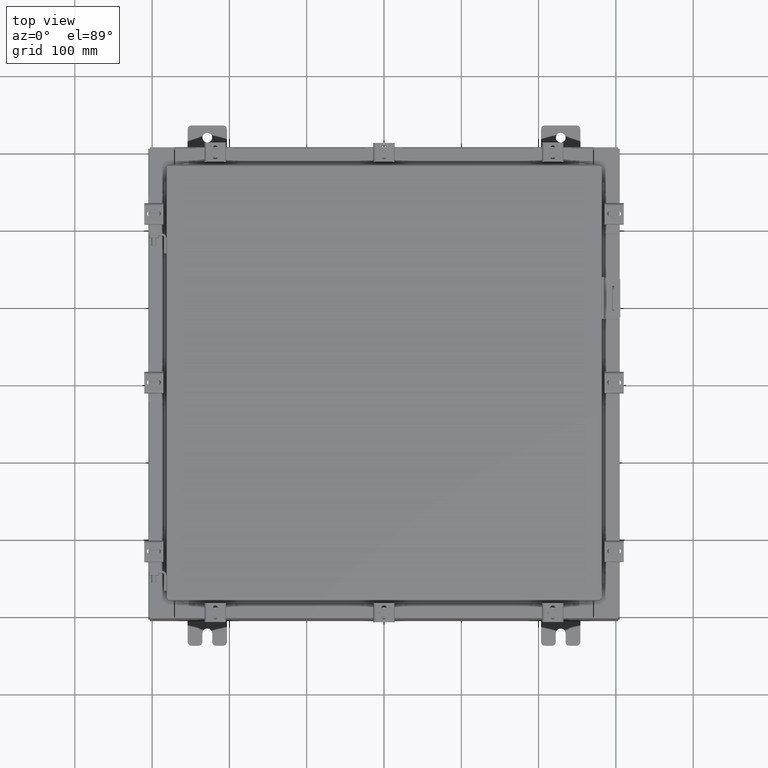
[diagram: clean part render]
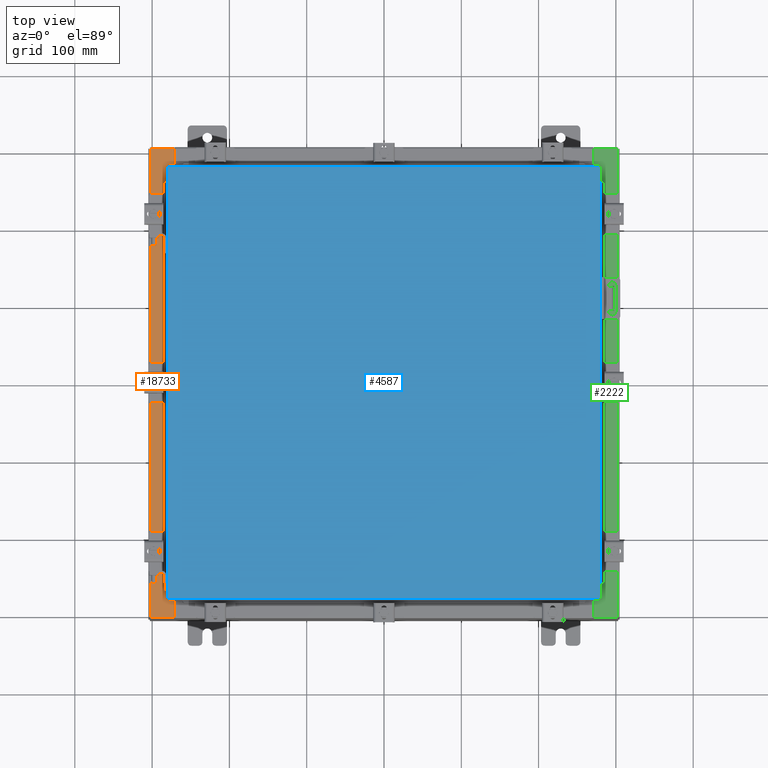
[diagram: same view with three faces highlighted in distinct colors, each labeled with its STEP entity id]
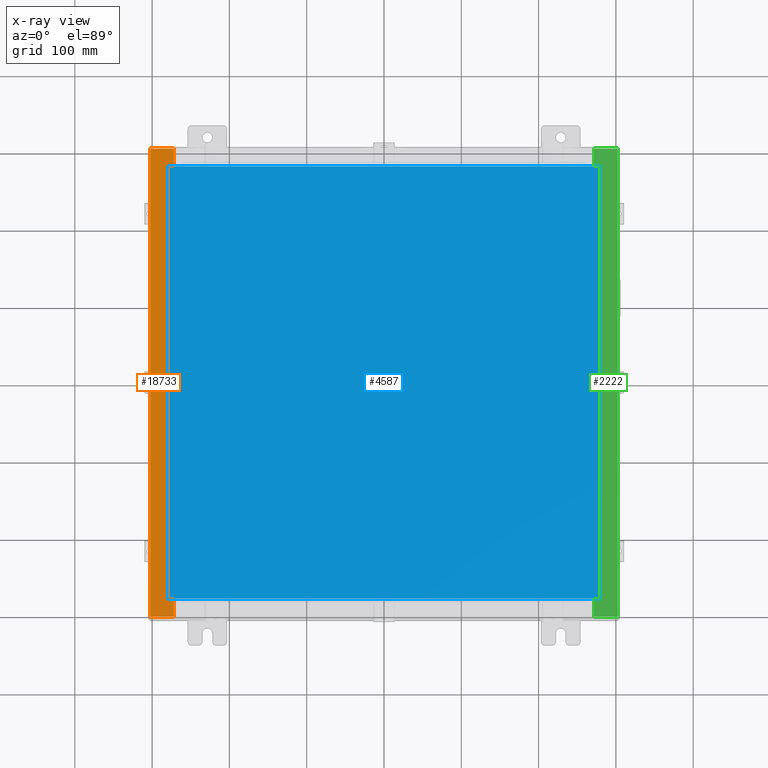
[diagram: x-ray of the same camera — body ghosted, the three highlighted faces saturated]
A machine part, top view with three faces highlighted in distinct colors.
The next image is the same camera in x-ray (body ghosted, the three faces saturated) — at least one of them is partly hidden behind the body in this view.
Their STEP definitions:

[orange] entity #18733 — the highlighted planar face has unit normal (0, 0, -1).
#194 = VERTEX_POINT ( 'NONE', #20283 ) ;
#269 = EDGE_CURVE ( 'NONE', #4550, #5561, #22265, .T. ) ;
#317 = CARTESIAN_POINT ( 'NONE',  ( -5.679009539018295300E-014, 0.0000000000000000000, 7.925300000000085300 ) ) ;
#813 = CARTESIAN_POINT ( 'NONE',  ( -10.75005000000003400, -10.63109999999998800, 7.925300000000008900 ) ) ;
#1818 = CARTESIAN_POINT ( 'NONE',  ( -10.69970000000003200, 10.63109999999999600, 7.925300000000008900 ) ) ;
#1853 = VERTEX_POINT ( 'NONE', #13227 ) ;
#2036 = CARTESIAN_POINT ( 'NONE',  ( -5.679009539018295300E-014, 11.92529999999999800, 7.925300000000085300 ) ) ;
#2079 = VERTEX_POINT ( 'NONE', #19293 ) ;
#2100 = EDGE_CURVE ( 'NONE', #2646, #16009, #10720, .T. ) ;
#2646 = VERTEX_POINT ( 'NONE', #813 ) ;
#2693 = LINE ( 'NONE', #3401, #20720 ) ;
#2778 = LINE ( 'NONE', #18590, #12050 ) ;
#3203 = CARTESIAN_POINT ( 'NONE',  ( -10.75005000000003400, -10.61242499999998900, 7.925300000000006200 ) ) ;
#3401 = CARTESIAN_POINT ( 'NONE',  ( -10.69970000000003200, 0.0000000000000000000, 7.925300000000008900 ) ) ;
#3511 = DIRECTION ( 'NONE',  ( -7.132762385546384700E-015, -0.0000000000000000000, 1.000000000000000000 ) ) ;
#3869 = ORIENTED_EDGE ( 'NONE', *, *, #2100, .F. ) ;
#4073 = AXIS2_PLACEMENT_3D ( 'NONE', #13993, #3511, #15778 ) ;
#4187 = ORIENTED_EDGE ( 'NONE', *, *, #269, .F. ) ;
#4423 = EDGE_CURVE ( 'NONE', #22096, #16009, #22073, .T. ) ;
#4443 = VECTOR ( 'NONE', #12146, 39.37007874015748100 ) ;
#4546 = CARTESIAN_POINT ( 'NONE',  ( -5.679009539018295300E-014, -11.92530000000000000, 7.925300000000085300 ) ) ;
#4550 = VERTEX_POINT ( 'NONE', #1818 ) ;
#4577 = DIRECTION ( 'NONE',  ( -0.0000000000000000000, -1.000000000000000000, -0.0000000000000000000 ) ) ;
#4628 = EDGE_CURVE ( 'NONE', #21488, #7824, #22334, .T. ) ;
#4706 = ORIENTED_EDGE ( 'NONE', *, *, #4628, .T. ) ;
#4837 = VECTOR ( 'NONE', #12505, 39.37007874015748100 ) ;
#4929 = DIRECTION ( 'NONE',  ( 1.000000000000000000, 0.0000000000000000000, 0.0000000000000000000 ) ) ;
#5286 = EDGE_CURVE ( 'NONE', #2079, #194, #9178, .T. ) ;
#5561 = VERTEX_POINT ( 'NONE', #6106 ) ;
#5908 = FACE_OUTER_BOUND ( 'NONE', #8754, .T. ) ;
#6106 = CARTESIAN_POINT ( 'NONE',  ( -10.75005000000003400, 10.63109999999999600, 7.925300000000008900 ) ) ;
#6865 = CARTESIAN_POINT ( 'NONE',  ( -11.91230000000003200, 11.92529999999999800, 7.925300000000000000 ) ) ;
#6939 = VECTOR ( 'NONE', #15180, 39.37007874015748100 ) ;
#7139 = ORIENTED_EDGE ( 'NONE', *, *, #9577, .F. ) ;
#7328 = DIRECTION ( 'NONE',  ( 7.132762385546384700E-015, 0.0000000000000000000, -1.000000000000000000 ) ) ;
#7824 = VERTEX_POINT ( 'NONE', #20764 ) ;
#8073 = DIRECTION ( 'NONE',  ( 1.000000000000000000, -0.0000000000000000000, 7.132762385546384700E-015 ) ) ;
#8159 = VECTOR ( 'NONE', #8471, 39.37007874015748100 ) ;
#8471 = DIRECTION ( 'NONE',  ( 0.0000000000000000000, 1.000000000000000000, 0.0000000000000000000 ) ) ;
#8754 = EDGE_LOOP ( 'NONE', ( #4187, #13725, #4706, #18750, #18435, #9954, #3869, #20399, #9370, #21208, #12756, #7139 ) ) ;
#8787 = AXIS2_PLACEMENT_3D ( 'NONE', #3203, #15461, #4929 ) ;
#9178 = LINE ( 'NONE', #21246, #19068 ) ;
#9305 = VERTEX_POINT ( 'NONE', #20326 ) ;
#9370 = ORIENTED_EDGE ( 'NONE', *, *, #20537, .F. ) ;
#9577 = EDGE_CURVE ( 'NONE', #5561, #2079, #11024, .T. ) ;
#9954 = ORIENTED_EDGE ( 'NONE', *, *, #4423, .T. ) ;
#10164 = VECTOR ( 'NONE', #18399, 39.37007874015748100 ) ;
#10720 = LINE ( 'NONE', #19173, #10164 ) ;
#11024 = CIRCLE ( 'NONE', #4073, 0.01867499999999949400 ) ;
#11650 = EDGE_CURVE ( 'NONE', #194, #1853, #2778, .T. ) ;
#11887 = EDGE_CURVE ( 'NONE', #9305, #2646, #17015, .T. ) ;
#12050 = VECTOR ( 'NONE', #4577, 39.37007874015748100 ) ;
#12146 = DIRECTION ( 'NONE',  ( -0.0000000000000000000, 1.000000000000000000, -0.0000000000000000000 ) ) ;
#12505 = DIRECTION ( 'NONE',  ( -1.000000000000000000, 0.0000000000000000000, -7.132762385546384700E-015 ) ) ;
#12539 = PLANE ( 'NONE',  #22445 ) ;
#12756 = ORIENTED_EDGE ( 'NONE', *, *, #5286, .F. ) ;
#13227 = CARTESIAN_POINT ( 'NONE',  ( -10.71270000000003500, -10.59374999999998900, 7.925300000000006200 ) ) ;
#13725 = ORIENTED_EDGE ( 'NONE', *, *, #17915, .T. ) ;
#13774 = LINE ( 'NONE', #6865, #4443 ) ;
#13899 = DIRECTION ( 'NONE',  ( 0.0000000000000000000, 1.000000000000000000, 0.0000000000000000000 ) ) ;
#13993 = CARTESIAN_POINT ( 'NONE',  ( -10.75005000000003400, 10.61242499999999800, 7.925300000000006200 ) ) ;
#14944 = VECTOR ( 'NONE', #8073, 39.37007874015748100 ) ;
#15180 = DIRECTION ( 'NONE',  ( -1.000000000000000000, 0.0000000000000000000, 0.0000000000000000000 ) ) ;
#15461 = DIRECTION ( 'NONE',  ( -7.132762385546384700E-015, -0.0000000000000000000, 1.000000000000000000 ) ) ;
#15778 = DIRECTION ( 'NONE',  ( 1.000000000000000000, 0.0000000000000000000, 0.0000000000000000000 ) ) ;
#16009 = VERTEX_POINT ( 'NONE', #17808 ) ;
#16850 = LINE ( 'NONE', #18600, #6939 ) ;
#17015 = CIRCLE ( 'NONE', #8787, 0.01867499999999949400 ) ;
#17808 = CARTESIAN_POINT ( 'NONE',  ( -10.69970000000003200, -10.63109999999999100, 7.925300000000008900 ) ) ;
#17915 = EDGE_CURVE ( 'NONE', #4550, #21488, #2693, .T. ) ;
#18399 = DIRECTION ( 'NONE',  ( 1.000000000000000000, 0.0000000000000000000, 2.170286390199955400E-014 ) ) ;
#18435 = ORIENTED_EDGE ( 'NONE', *, *, #19679, .T. ) ;
#18590 = CARTESIAN_POINT ( 'NONE',  ( -10.71270000000003500, 10.59374999999999300, 7.925300000000006200 ) ) ;
#18600 = CARTESIAN_POINT ( 'NONE',  ( -10.71270000000003500, -10.59374999999998900, 7.925300000000006200 ) ) ;
#18733 = ADVANCED_FACE ( 'NONE', ( #5908 ), #12539, .F. ) ;
#18750 = ORIENTED_EDGE ( 'NONE', *, *, #21747, .F. ) ;
#19068 = VECTOR ( 'NONE', #19501, 39.37007874015748100 ) ;
#19173 = CARTESIAN_POINT ( 'NONE',  ( -10.75005000000003400, -10.63109999999998800, 7.925300000000006200 ) ) ;
#19293 = CARTESIAN_POINT ( 'NONE',  ( -10.75005000000003400, 10.59374999999999800, 7.925300000000008900 ) ) ;
#19501 = DIRECTION ( 'NONE',  ( 1.000000000000000000, 0.0000000000000000000, 0.0000000000000000000 ) ) ;
#19569 = LINE ( 'NONE', #4546, #14944 ) ;
#19572 = DIRECTION ( 'NONE',  ( -1.000000000000000000, 0.0000000000000000000, -7.132762385546384700E-015 ) ) ;
#19679 = EDGE_CURVE ( 'NONE', #20416, #22096, #19569, .T. ) ;
#20050 = CARTESIAN_POINT ( 'NONE',  ( -11.91230000000003200, -11.92530000000000000, 7.925300000000000000 ) ) ;
#20242 = CARTESIAN_POINT ( 'NONE',  ( -10.69970000000003200, -11.92530000000000000, 7.925300000000008900 ) ) ;
#20283 = CARTESIAN_POINT ( 'NONE',  ( -10.71270000000003500, 10.59374999999999800, 7.925300000000006200 ) ) ;
#20326 = CARTESIAN_POINT ( 'NONE',  ( -10.75005000000003400, -10.59374999999998900, 7.925300000000008900 ) ) ;
#20399 = ORIENTED_EDGE ( 'NONE', *, *, #11887, .F. ) ;
#20416 = VERTEX_POINT ( 'NONE', #20050 ) ;
#20537 = EDGE_CURVE ( 'NONE', #1853, #9305, #16850, .T. ) ;
#20720 = VECTOR ( 'NONE', #13899, 39.37007874015748100 ) ;
#20764 = CARTESIAN_POINT ( 'NONE',  ( -11.91230000000003200, 11.92529999999999800, 7.925300000000000000 ) ) ;
#21208 = ORIENTED_EDGE ( 'NONE', *, *, #11650, .F. ) ;
#21246 = CARTESIAN_POINT ( 'NONE',  ( -10.75005000000003400, 10.59374999999999800, 7.925300000000006200 ) ) ;
#21322 = CARTESIAN_POINT ( 'NONE',  ( -10.69970000000003200, 10.63109999999999600, 7.925300000000007100 ) ) ;
#21488 = VERTEX_POINT ( 'NONE', #21996 ) ;
#21601 = DIRECTION ( 'NONE',  ( -1.000000000000000000, 0.0000000000000000000, -2.170286390199955400E-014 ) ) ;
#21735 = VECTOR ( 'NONE', #21601, 39.37007874015748100 ) ;
#21747 = EDGE_CURVE ( 'NONE', #20416, #7824, #13774, .T. ) ;
#21996 = CARTESIAN_POINT ( 'NONE',  ( -10.69970000000003200, 11.92529999999999800, 7.925300000000008900 ) ) ;
#22073 = LINE ( 'NONE', #22343, #8159 ) ;
#22096 = VERTEX_POINT ( 'NONE', #20242 ) ;
#22265 = LINE ( 'NONE', #21322, #21735 ) ;
#22334 = LINE ( 'NONE', #2036, #4837 ) ;
#22343 = CARTESIAN_POINT ( 'NONE',  ( -10.69970000000003200, 0.0000000000000000000, 7.925300000000008900 ) ) ;
#22445 = AXIS2_PLACEMENT_3D ( 'NONE', #317, #7328, #19572 ) ;

[blue] entity #4587 — the highlighted planar face has unit normal (0, 0, -1).
#64 = PLANE ( 'NONE',  #3920 ) ;
#121 = VECTOR ( 'NONE', #12290, 39.37007874015748100 ) ;
#1338 = FACE_OUTER_BOUND ( 'NONE', #13589, .T. ) ;
#1492 = VERTEX_POINT ( 'NONE', #10109 ) ;
#1497 = CARTESIAN_POINT ( 'NONE',  ( 11.00630000000000000, 11.00630000000000000, 0.0000000000000000000 ) ) ;
#1889 = DIRECTION ( 'NONE',  ( 0.0000000000000000000, 0.0000000000000000000, -1.000000000000000000 ) ) ;
#2807 = CARTESIAN_POINT ( 'NONE',  ( -11.00630000000000000, -11.00630000000000000, 0.0000000000000000000 ) ) ;
#2839 = VERTEX_POINT ( 'NONE', #8372 ) ;
#2978 = VECTOR ( 'NONE', #13308, 39.37007874015748100 ) ;
#3920 = AXIS2_PLACEMENT_3D ( 'NONE', #14059, #1889, #14139 ) ;
#4001 = ORIENTED_EDGE ( 'NONE', *, *, #7073, .T. ) ;
#4587 = ADVANCED_FACE ( 'NONE', ( #1338 ), #64, .F. ) ;
#5174 = ORIENTED_EDGE ( 'NONE', *, *, #14885, .T. ) ;
#6452 = VECTOR ( 'NONE', #10152, 39.37007874015748100 ) ;
#7026 = ORIENTED_EDGE ( 'NONE', *, *, #17691, .T. ) ;
#7073 = EDGE_CURVE ( 'NONE', #2839, #10464, #19874, .T. ) ;
#7675 = CARTESIAN_POINT ( 'NONE',  ( -11.00630000000000000, 11.00630000000000000, 0.0000000000000000000 ) ) ;
#7949 = VECTOR ( 'NONE', #16028, 39.37007874015748100 ) ;
#8372 = CARTESIAN_POINT ( 'NONE',  ( 11.00630000000000000, 11.00630000000000000, 0.0000000000000000000 ) ) ;
#9379 = LINE ( 'NONE', #14302, #121 ) ;
#9712 = EDGE_CURVE ( 'NONE', #10464, #9909, #9379, .T. ) ;
#9909 = VERTEX_POINT ( 'NONE', #13236 ) ;
#10109 = CARTESIAN_POINT ( 'NONE',  ( 11.00630000000000000, -11.00630000000000000, 0.0000000000000000000 ) ) ;
#10152 = DIRECTION ( 'NONE',  ( -1.000000000000000000, -0.0000000000000000000, -0.0000000000000000000 ) ) ;
#10464 = VERTEX_POINT ( 'NONE', #7675 ) ;
#10631 = CARTESIAN_POINT ( 'NONE',  ( 11.00630000000000000, -11.00630000000000000, 0.0000000000000000000 ) ) ;
#12290 = DIRECTION ( 'NONE',  ( 0.0000000000000000000, -1.000000000000000000, 0.0000000000000000000 ) ) ;
#13236 = CARTESIAN_POINT ( 'NONE',  ( -11.00630000000000000, -11.00630000000000000, 0.0000000000000000000 ) ) ;
#13308 = DIRECTION ( 'NONE',  ( 1.000000000000000000, -0.0000000000000000000, -0.0000000000000000000 ) ) ;
#13589 = EDGE_LOOP ( 'NONE', ( #7026, #5174, #4001, #15246 ) ) ;
#14059 = CARTESIAN_POINT ( 'NONE',  ( 0.0000000000000000000, 0.0000000000000000000, 0.0000000000000000000 ) ) ;
#14139 = DIRECTION ( 'NONE',  ( -1.000000000000000000, 0.0000000000000000000, -0.0000000000000000000 ) ) ;
#14302 = CARTESIAN_POINT ( 'NONE',  ( -11.00630000000000000, 11.00630000000000000, 0.0000000000000000000 ) ) ;
#14885 = EDGE_CURVE ( 'NONE', #1492, #2839, #17290, .T. ) ;
#15246 = ORIENTED_EDGE ( 'NONE', *, *, #9712, .T. ) ;
#16028 = DIRECTION ( 'NONE',  ( 0.0000000000000000000, 1.000000000000000000, 0.0000000000000000000 ) ) ;
#16415 = LINE ( 'NONE', #2807, #2978 ) ;
#17290 = LINE ( 'NONE', #10631, #7949 ) ;
#17691 = EDGE_CURVE ( 'NONE', #9909, #1492, #16415, .T. ) ;
#19874 = LINE ( 'NONE', #1497, #6452 ) ;

[green] entity #2222 — the highlighted planar face has unit normal (-0, -0, -1).
#56 = AXIS2_PLACEMENT_3D ( 'NONE', #13272, #2777, #15022 ) ;
#113 = DIRECTION ( 'NONE',  ( 6.241167087353086200E-015, 4.581600452255730400E-017, 1.000000000000000000 ) ) ;
#1684 = ORIENTED_EDGE ( 'NONE', *, *, #17698, .F. ) ;
#1693 = CARTESIAN_POINT ( 'NONE',  ( 10.69970000000002800, -10.63110000000000200, 7.925300000000008900 ) ) ;
#1878 = EDGE_CURVE ( 'NONE', #16208, #2628, #18153, .T. ) ;
#2222 = ADVANCED_FACE ( 'NONE', ( #16243 ), #12546, .F. ) ;
#2450 = EDGE_CURVE ( 'NONE', #3473, #16208, #22175, .T. ) ;
#2628 = VERTEX_POINT ( 'NONE', #3241 ) ;
#2777 = DIRECTION ( 'NONE',  ( 6.241167087353086200E-015, 4.581600452255730400E-017, 1.000000000000000000 ) ) ;
#3241 = CARTESIAN_POINT ( 'NONE',  ( 10.69970000000002800, 10.63109999999998600, 7.925300000000008900 ) ) ;
#3467 = CARTESIAN_POINT ( 'NONE',  ( 10.75005000000003000, 10.59374999999998400, 7.925300000000007100 ) ) ;
#3473 = VERTEX_POINT ( 'NONE', #12863 ) ;
#3712 = CARTESIAN_POINT ( 'NONE',  ( 4.972393517341146200E-014, 11.92529999999999600, 7.925300000000075500 ) ) ;
#3906 = VECTOR ( 'NONE', #3930, 39.37007874015748100 ) ;
#3930 = DIRECTION ( 'NONE',  ( -1.000000000000000000, 0.0000000000000000000, 6.241167087353087800E-015 ) ) ;
#4135 = DIRECTION ( 'NONE',  ( -0.0000000000000000000, 1.000000000000000000, -0.0000000000000000000 ) ) ;
#4322 = CARTESIAN_POINT ( 'NONE',  ( 10.69970000000002800, 11.92529999999999600, 7.925300000000008900 ) ) ;
#4544 = DIRECTION ( 'NONE',  ( -1.000000000000000000, 0.0000000000000000000, -2.170286390199955400E-014 ) ) ;
#4600 = EDGE_CURVE ( 'NONE', #3473, #7610, #5379, .T. ) ;
#4841 = CARTESIAN_POINT ( 'NONE',  ( 10.69970000000002800, -10.63110000000000200, 7.925300000000008900 ) ) ;
#4887 = LINE ( 'NONE', #21329, #8991 ) ;
#5161 = VERTEX_POINT ( 'NONE', #3467 ) ;
#5371 = CARTESIAN_POINT ( 'NONE',  ( 11.91230000000002700, -11.92530000000000400, 7.925300000000000900 ) ) ;
#5379 = LINE ( 'NONE', #5371, #18820 ) ;
#5510 = VECTOR ( 'NONE', #4135, 39.37007874015748100 ) ;
#5905 = EDGE_CURVE ( 'NONE', #10092, #7633, #13854, .T. ) ;
#6103 = AXIS2_PLACEMENT_3D ( 'NONE', #10557, #113, #12324 ) ;
#6124 = LINE ( 'NONE', #9893, #14370 ) ;
#6409 = VECTOR ( 'NONE', #10844, 39.37007874015748100 ) ;
#6438 = VERTEX_POINT ( 'NONE', #13905 ) ;
#6906 = ORIENTED_EDGE ( 'NONE', *, *, #1878, .T. ) ;
#7133 = DIRECTION ( 'NONE',  ( -9.163200904511462000E-017, -1.000000000000000000, 4.581600452255787700E-017 ) ) ;
#7154 = DIRECTION ( 'NONE',  ( -4.379057701015054300E-047, -1.000000000000000000, 4.581600452255731000E-017 ) ) ;
#7610 = VERTEX_POINT ( 'NONE', #11442 ) ;
#7633 = VERTEX_POINT ( 'NONE', #11508 ) ;
#7644 = DIRECTION ( 'NONE',  ( -4.379057701015054300E-047, -1.000000000000000000, 4.581600452255731000E-017 ) ) ;
#7676 = CARTESIAN_POINT ( 'NONE',  ( 10.69970000000002800, 3.631055806426238000E-016, 7.925300000000008900 ) ) ;
#8086 = VECTOR ( 'NONE', #7154, 39.37007874015748100 ) ;
#8251 = ORIENTED_EDGE ( 'NONE', *, *, #4600, .F. ) ;
#8983 = EDGE_CURVE ( 'NONE', #7633, #7610, #9930, .T. ) ;
#8991 = VECTOR ( 'NONE', #19601, 39.37007874015748100 ) ;
#9361 = EDGE_CURVE ( 'NONE', #22552, #18333, #6124, .T. ) ;
#9544 = CARTESIAN_POINT ( 'NONE',  ( 10.71270000000003000, -10.59375000000000200, 7.925300000000009800 ) ) ;
#9568 = EDGE_CURVE ( 'NONE', #10092, #15045, #11585, .T. ) ;
#9790 = CARTESIAN_POINT ( 'NONE',  ( 10.75005000000003000, 10.63109999999998400, 7.925300000000009800 ) ) ;
#9893 = CARTESIAN_POINT ( 'NONE',  ( 10.75005000000003000, -10.59375000000000200, 7.925300000000009800 ) ) ;
#9930 = LINE ( 'NONE', #21315, #6409 ) ;
#10092 = VERTEX_POINT ( 'NONE', #4841 ) ;
#10452 = EDGE_CURVE ( 'NONE', #18333, #6438, #11273, .T. ) ;
#10557 = CARTESIAN_POINT ( 'NONE',  ( 10.75005000000003000, 10.61242499999998400, 7.925300000000009800 ) ) ;
#10615 = CIRCLE ( 'NONE', #56, 0.01867499999999949400 ) ;
#10674 = ORIENTED_EDGE ( 'NONE', *, *, #5905, .T. ) ;
#10844 = DIRECTION ( 'NONE',  ( 1.000000000000000000, 0.0000000000000000000, -6.241167087353087800E-015 ) ) ;
#11273 = LINE ( 'NONE', #18088, #5510 ) ;
#11442 = CARTESIAN_POINT ( 'NONE',  ( 11.91230000000002900, -11.92530000000000400, 7.925300000000000900 ) ) ;
#11483 = DIRECTION ( 'NONE',  ( -1.000000000000000000, 0.0000000000000000000, 6.241167087353086200E-015 ) ) ;
#11508 = CARTESIAN_POINT ( 'NONE',  ( 10.69970000000002800, -11.92530000000000400, 7.925300000000009800 ) ) ;
#11514 = DIRECTION ( 'NONE',  ( -6.241167087353086200E-015, -4.581600452255731000E-017, -1.000000000000000000 ) ) ;
#11585 = LINE ( 'NONE', #1693, #12144 ) ;
#11679 = ORIENTED_EDGE ( 'NONE', *, *, #12933, .F. ) ;
#11818 = CARTESIAN_POINT ( 'NONE',  ( 4.972393517341146200E-014, 3.631055806426268100E-016, 7.925300000000075500 ) ) ;
#11860 = ORIENTED_EDGE ( 'NONE', *, *, #9568, .F. ) ;
#11891 = ORIENTED_EDGE ( 'NONE', *, *, #8983, .T. ) ;
#12139 = DIRECTION ( 'NONE',  ( 1.000000000000000000, 0.0000000000000000000, 2.170286390199955400E-014 ) ) ;
#12144 = VECTOR ( 'NONE', #12139, 39.37007874015748100 ) ;
#12324 = DIRECTION ( 'NONE',  ( 1.000000000000000000, 0.0000000000000000000, 0.0000000000000000000 ) ) ;
#12546 = PLANE ( 'NONE',  #19578 ) ;
#12863 = CARTESIAN_POINT ( 'NONE',  ( 11.91230000000002900, 11.92529999999999600, 7.925300000000000000 ) ) ;
#12933 = EDGE_CURVE ( 'NONE', #15045, #22552, #10615, .T. ) ;
#13114 = ORIENTED_EDGE ( 'NONE', *, *, #9361, .F. ) ;
#13272 = CARTESIAN_POINT ( 'NONE',  ( 10.75005000000003000, -10.61242500000000200, 7.925300000000009800 ) ) ;
#13304 = EDGE_LOOP ( 'NONE', ( #11860, #10674, #11891, #8251, #22243, #6906, #1684, #20143, #19095, #18181, #13114, #11679 ) ) ;
#13797 = CIRCLE ( 'NONE', #6103, 0.01867499999999949400 ) ;
#13854 = LINE ( 'NONE', #15925, #8086 ) ;
#13905 = CARTESIAN_POINT ( 'NONE',  ( 10.71270000000003000, 10.59374999999998400, 7.925300000000009800 ) ) ;
#14057 = VECTOR ( 'NONE', #7644, 39.37007874015748100 ) ;
#14370 = VECTOR ( 'NONE', #22128, 39.37007874015748100 ) ;
#15022 = DIRECTION ( 'NONE',  ( 1.000000000000000000, 0.0000000000000000000, 0.0000000000000000000 ) ) ;
#15045 = VERTEX_POINT ( 'NONE', #16429 ) ;
#15925 = CARTESIAN_POINT ( 'NONE',  ( 10.69970000000002800, 3.631055806426238000E-016, 7.925300000000008900 ) ) ;
#16208 = VERTEX_POINT ( 'NONE', #4322 ) ;
#16243 = FACE_OUTER_BOUND ( 'NONE', #13304, .T. ) ;
#16429 = CARTESIAN_POINT ( 'NONE',  ( 10.75005000000003000, -10.63110000000000200, 7.925300000000008900 ) ) ;
#16680 = EDGE_CURVE ( 'NONE', #6438, #5161, #4887, .T. ) ;
#17698 = EDGE_CURVE ( 'NONE', #19385, #2628, #20997, .T. ) ;
#17885 = CARTESIAN_POINT ( 'NONE',  ( 10.75005000000003000, 10.63109999999998400, 7.925300000000008900 ) ) ;
#18088 = CARTESIAN_POINT ( 'NONE',  ( 10.71270000000003000, -10.59374999999999800, 7.925300000000009800 ) ) ;
#18153 = LINE ( 'NONE', #7676, #14057 ) ;
#18181 = ORIENTED_EDGE ( 'NONE', *, *, #10452, .F. ) ;
#18333 = VERTEX_POINT ( 'NONE', #9544 ) ;
#18820 = VECTOR ( 'NONE', #7133, 39.37007874015748100 ) ;
#19095 = ORIENTED_EDGE ( 'NONE', *, *, #16680, .F. ) ;
#19385 = VERTEX_POINT ( 'NONE', #17885 ) ;
#19544 = CARTESIAN_POINT ( 'NONE',  ( 10.75005000000003000, -10.59375000000000200, 7.925300000000008900 ) ) ;
#19578 = AXIS2_PLACEMENT_3D ( 'NONE', #11818, #11514, #11483 ) ;
#19601 = DIRECTION ( 'NONE',  ( 1.000000000000000000, 0.0000000000000000000, 0.0000000000000000000 ) ) ;
#20143 = ORIENTED_EDGE ( 'NONE', *, *, #21044, .F. ) ;
#20458 = VECTOR ( 'NONE', #4544, 39.37007874015748100 ) ;
#20997 = LINE ( 'NONE', #9790, #20458 ) ;
#21044 = EDGE_CURVE ( 'NONE', #5161, #19385, #13797, .T. ) ;
#21315 = CARTESIAN_POINT ( 'NONE',  ( 4.972393517341146200E-014, -11.92530000000000400, 7.925300000000076400 ) ) ;
#21329 = CARTESIAN_POINT ( 'NONE',  ( 10.71270000000003000, 10.59374999999998400, 7.925300000000009800 ) ) ;
#22128 = DIRECTION ( 'NONE',  ( -1.000000000000000000, 0.0000000000000000000, 0.0000000000000000000 ) ) ;
#22175 = LINE ( 'NONE', #3712, #3906 ) ;
#22243 = ORIENTED_EDGE ( 'NONE', *, *, #2450, .T. ) ;
#22552 = VERTEX_POINT ( 'NONE', #19544 ) ;